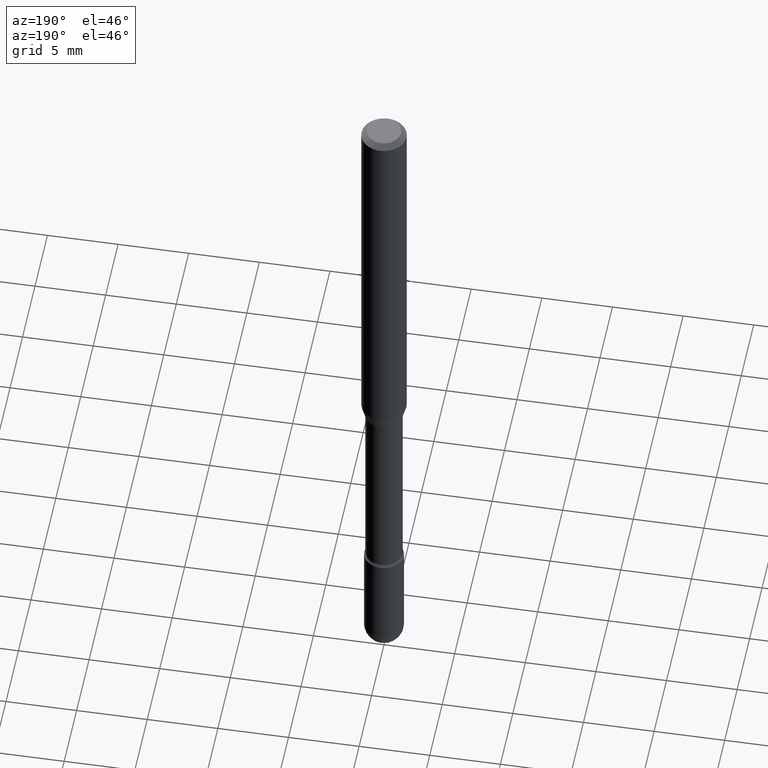
[diagram: clean part render]
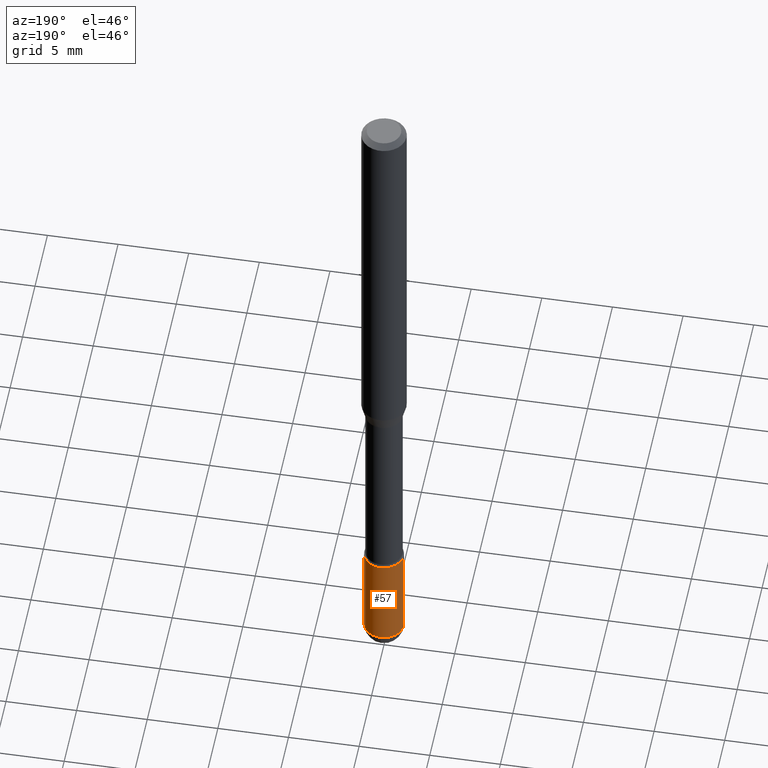
[diagram: same view with one face highlighted and labeled with its STEP entity id]
A machine part, auxiliary view. The second image highlights one B-rep face of the part: STEP entity #57.
In plain terms, the highlighted cylindrical surface (edge-blend (fillet) strip) has radius 1.397 mm, axis along (-0, 0, 1).
Its self-contained STEP definition (entity closure, byte-faithful):
#16 = CARTESIAN_POINT ( 'NONE',  ( 0.05500000000000000028, -6.694915467231730455E-15, -1.944999999999999840 ) ) ;
#20 = DIRECTION ( 'NONE',  ( -2.445468806185136877E-29, 3.491481338843145188E-15, 1.000000000000000000 ) ) ;
#50 = ORIENTED_EDGE ( 'NONE', *, *, #96, .T. ) ;
#57 = ADVANCED_FACE ( 'NONE', ( #439 ), #556, .T. ) ;
#70 = EDGE_LOOP ( 'NONE', ( #564, #50, #474, #566, #385 ) ) ;
#96 = EDGE_CURVE ( 'NONE', #398, #182, #469, .T. ) ;
#100 = CIRCLE ( 'NONE', #300, 0.05500000000000000028 ) ;
#106 = EDGE_CURVE ( 'NONE', #314, #412, #269, .T. ) ;
#107 = DIRECTION ( 'NONE',  ( 1.000000000000000000, -6.982962677686262766E-15, 0.000000000000000000 ) ) ;
#113 = DIRECTION ( 'NONE',  ( -2.445468806185136597E-29, 3.491481338843145583E-15, 1.000000000000000000 ) ) ;
#115 = DIRECTION ( 'NONE',  ( -2.445468806185136597E-29, 3.491481338843145583E-15, 1.000000000000000000 ) ) ;
#120 = AXIS2_PLACEMENT_3D ( 'NONE', #303, #172, #308 ) ;
#127 = DIRECTION ( 'NONE',  ( 1.000000000000000000, -6.982962677686266711E-15, 4.876176775795935793E-29 ) ) ;
#166 = CARTESIAN_POINT ( 'NONE',  ( 4.083932906329177803E-29, -5.830773835868053056E-15, -1.669999999999999929 ) ) ;
#172 = DIRECTION ( 'NONE',  ( -2.445468806185136597E-29, 3.491481338843145583E-15, 1.000000000000000000 ) ) ;
#177 = AXIS2_PLACEMENT_3D ( 'NONE', #166, #113, #312 ) ;
#182 = VERTEX_POINT ( 'NONE', #481 ) ;
#183 = DIRECTION ( 'NONE',  ( -2.445468806185136597E-29, 3.491481338843145583E-15, 1.000000000000000000 ) ) ;
#190 = AXIS2_PLACEMENT_3D ( 'NONE', #549, #183, #127 ) ;
#209 = EDGE_CURVE ( 'NONE', #455, #398, #100, .T. ) ;
#211 = CARTESIAN_POINT ( 'NONE',  ( -0.05500000000000000028, -5.920054015290930810E-15, -1.944999999999999840 ) ) ;
#232 = DIRECTION ( 'NONE',  ( -2.445468806185136877E-29, 3.491481338843145188E-15, 1.000000000000000000 ) ) ;
#265 = CARTESIAN_POINT ( 'NONE',  ( -0.05500000000000000028, 3.907985046680551042E-16, -2.705414299640198362E-30 ) ) ;
#269 = LINE ( 'NONE', #436, #335 ) ;
#292 = CIRCLE ( 'NONE', #177, 0.05500000000000000028 ) ;
#300 = AXIS2_PLACEMENT_3D ( 'NONE', #344, #115, #107 ) ;
#303 = CARTESIAN_POINT ( 'NONE',  ( 4.756436828030090255E-29, -6.790931204049917095E-15, -1.944999999999999840 ) ) ;
#308 = DIRECTION ( 'NONE',  ( 1.000000000000000000, -6.982962677686262766E-15, 0.000000000000000000 ) ) ;
#312 = DIRECTION ( 'NONE',  ( 1.000000000000000000, -6.982962677686262766E-15, 0.000000000000000000 ) ) ;
#314 = VERTEX_POINT ( 'NONE', #16 ) ;
#335 = VECTOR ( 'NONE', #232, 39.37007874015748143 ) ;
#344 = CARTESIAN_POINT ( 'NONE',  ( 4.756436828030090255E-29, -6.790931204049917095E-15, -1.944999999999999840 ) ) ;
#385 = ORIENTED_EDGE ( 'NONE', *, *, #399, .T. ) ;
#398 = VERTEX_POINT ( 'NONE', #211 ) ;
#399 = EDGE_CURVE ( 'NONE', #314, #455, #516, .T. ) ;
#412 = VERTEX_POINT ( 'NONE', #524 ) ;
#415 = VECTOR ( 'NONE', #20, 39.37007874015748143 ) ;
#430 = CARTESIAN_POINT ( 'NONE',  ( 3.840629472727923656E-16, 0.05499999999999323486, -1.945000000000000062 ) ) ;
#436 = CARTESIAN_POINT ( 'NONE',  ( 0.05500000000000000028, -3.840629472727446888E-16, 2.681897226687764826E-30 ) ) ;
#439 = FACE_OUTER_BOUND ( 'NONE', #70, .T. ) ;
#455 = VERTEX_POINT ( 'NONE', #430 ) ;
#469 = LINE ( 'NONE', #265, #415 ) ;
#474 = ORIENTED_EDGE ( 'NONE', *, *, #499, .F. ) ;
#481 = CARTESIAN_POINT ( 'NONE',  ( -0.05500000000000000028, -5.920054015290930021E-15, -1.669999999999999929 ) ) ;
#499 = EDGE_CURVE ( 'NONE', #412, #182, #292, .T. ) ;
#516 = CIRCLE ( 'NONE', #120, 0.05500000000000000028 ) ;
#524 = CARTESIAN_POINT ( 'NONE',  ( 0.05500000000000000028, -6.214836783140797252E-15, -1.669999999999999929 ) ) ;
#549 = CARTESIAN_POINT ( 'NONE',  ( 0.000000000000000000, 0.000000000000000000, 0.000000000000000000 ) ) ;
#556 = CYLINDRICAL_SURFACE ( 'NONE', #190, 0.05500000000000000028 ) ;
#564 = ORIENTED_EDGE ( 'NONE', *, *, #209, .T. ) ;
#566 = ORIENTED_EDGE ( 'NONE', *, *, #106, .F. ) ;